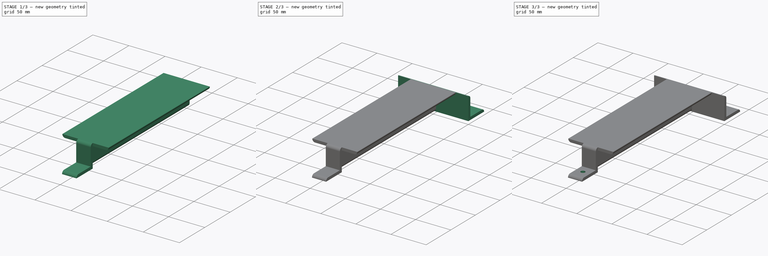
[diagram: build sequence overview — one tinted view per stage of 3, left to right]
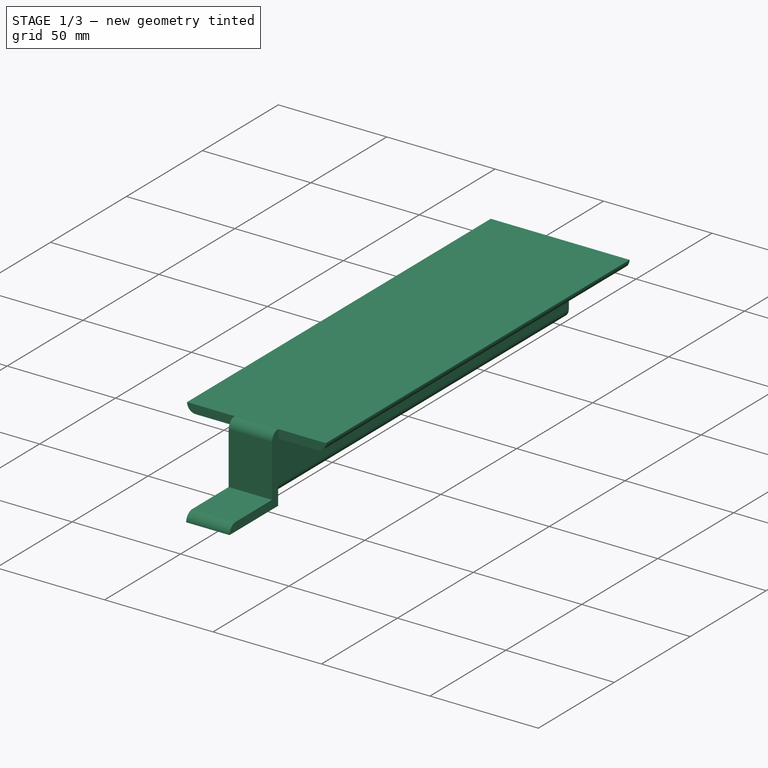
[diagram: stage 1 of 3 — iso view after this stage's code; geometry added in this stage tinted green]
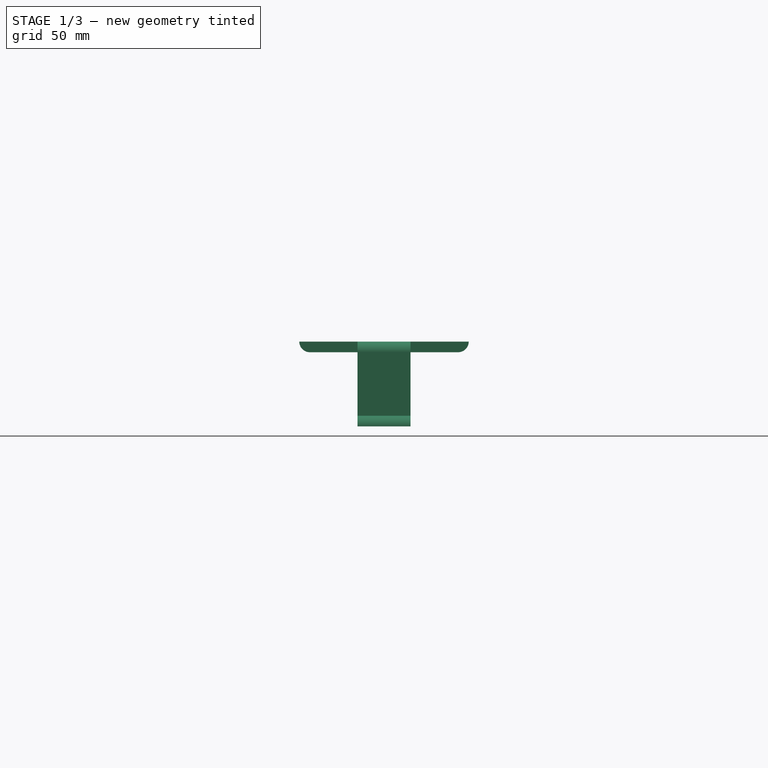
[diagram: stage 1 of 3 — front view after this stage's code; geometry added in this stage tinted green]
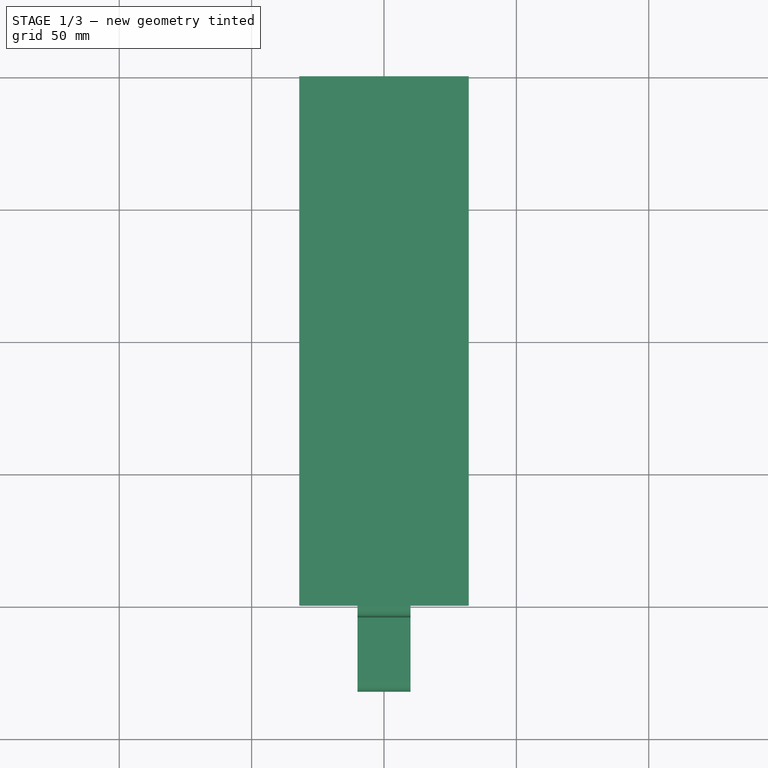
[diagram: stage 1 of 3 — top view after this stage's code; geometry added in this stage tinted green]
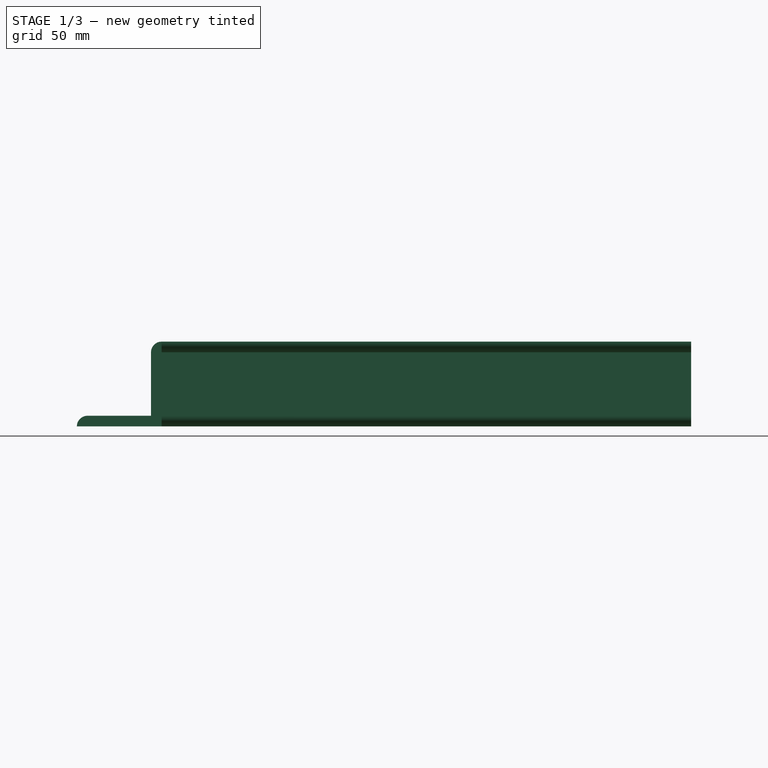
[diagram: stage 1 of 3 — right view after this stage's code; geometry added in this stage tinted green]
FCSTD DOCUMENT  (FreeCAD 0.19R)
Label: lower_support
License: All rights reserved
LicenseURL: http://en.wikipedia.org/wiki/All_rights_reserved
objects: Sketcher::SketchObject×5, PartDesign::CoordinateSystem×5, PartDesign::Pad×3, PartDesign::Point×3, PartDesign::Hole×2, PartDesign::Plane×1, PartDesign::Body×1
note: 25 computed .brp shape members not serialized (recipe doc carries the construction recipe); baked Part::Feature solids carry a one-line shape summary decoded from their .brp

FEATURE [Sketcher::SketchObject] Sketch
  FullyConstrained = true
  MapMode = 5
  Placement = pos=(0,0,0) rot=(1,0,0;1.5708rad)
  Support = -> [XZ_Plane]
  sketch-geometry (8):
    g0: LineSegment StartX=-32 StartY=32 StartZ=0 EndX=32 EndY=32 EndZ=0
    g1: LineSegment StartX=-28 StartY=28 StartZ=0 EndX=-4 EndY=28 EndZ=0
    g2: LineSegment StartX=-4 StartY=4 StartZ=0 EndX=-4 EndY=28 EndZ=0
    g3: LineSegment StartX=4 StartY=28 StartZ=0 EndX=4 EndY=4 EndZ=0
    g4: LineSegment StartX=4 StartY=28 StartZ=0 EndX=28 EndY=28 EndZ=0
    g5: ArcOfCircle CenterX=-28 CenterY=32 CenterZ=0 NormalX=0 NormalY=0 NormalZ=1 AngleXU=0 Radius=4 StartAngle=3.14159 EndAngle=4.71239
    g6: ArcOfCircle CenterX=28 CenterY=32 CenterZ=0 NormalX=0 NormalY=0 NormalZ=1 AngleXU=0 Radius=4 StartAngle=4.71239 EndAngle=6.28319
    g7: ArcOfCircle CenterX=1e-16 CenterY=4 CenterZ=0 NormalX=0 NormalY=0 NormalZ=1 AngleXU=0 Radius=4 StartAngle=3.14159 EndAngle=6.28319
  constraints (25):
    c: Horizontal(g1)
    c: Coincident(g2,g1)
    c: Vertical(g2)
    c: Vertical(g3)
    c: Coincident(g4,g3)
    c: Horizontal(g4)
    c: DistanceX(g2,g3) = 8
    c: DistanceY(g4,g0) = 4
    c: DistanceX(g0,g0) = 64
    c: Symmetric(g1,g3,g-2)
    c: DistanceY(g3,g3) = 24
    c: DistanceY(g2,g1) = 24
    c: DistanceX(g3,g4) = 24
    c: DistanceX(g1,g1) = 24
    c: DistanceY(g-1,g2) = 4
    c: Symmetric(g0,g0,g-2)
    c: Coincident(g5,g0)
    c: PointOnObject(g5,g0)
    c: Coincident(g5,g1)
    c: PointOnObject(g6,g0)
    c: Coincident(g6,g4)
    c: Coincident(g6,g0)
    c: Coincident(g7,g3)
    c: Coincident(g7,g2)
    c: PointOnObject(g-1,g7)
FEATURE [PartDesign::Pad] Pad
  Direction = (1,1,1)
  Length = 200
  Length2 = 100
  Placement = pos=(0,0,0) rot=(1,0,0;1.5708rad)
  Profile = -> Sketch
  Type = 0
FEATURE [PartDesign::CoordinateSystem] LCS_1
  AttacherType = Attacher::AttachEngine3D
  MapMode = 45
  Placement = pos=(0,-200,32) rot=(0.57735,0.57735,0.57735;2.0944rad)
  Support = -> [Pad]
FEATURE [PartDesign::CoordinateSystem] LCS_2
  AttacherType = Attacher::AttachEngine3D
  MapMode = 45
  Placement = pos=(0,0,32) rot=(0.57735,0.57735,0.57735;2.0944rad)
  Support = -> [Pad]
FEATURE [PartDesign::Plane] DatumPlane
  AttachmentOffset = pos=(0,0,0) rot=(0,1,0;1.5708rad)
  Length = 288.534
  MapMode = 5
  Placement = pos=(0,0,0) rot=(-0.57735,0.57735,-0.57735;2.0944rad)
  ResizeMode = 0
  Support = -> [Pad]
  Width = 81.5341
FEATURE [Sketcher::SketchObject] Sketch001
  ExternalGeometry = -> [Pad]
  FullyConstrained = true
  MapMode = 5
  Placement = pos=(0,0,0) rot=(0.57735,-0.57735,0.57735;4.18879rad)
  Support = -> [DatumPlane]
  sketch-geometry (6):
    g0: LineSegment StartX=200 StartY=0 StartZ=0 EndX=232 EndY=-1e-15 EndZ=0
    g1: LineSegment StartX=200 StartY=0 StartZ=0 EndX=200 EndY=-32 EndZ=0
    g2: LineSegment StartX=228 StartY=-4 StartZ=0 EndX=204 EndY=-4 EndZ=0
    g3: LineSegment StartX=204 StartY=-4 StartZ=0 EndX=204 EndY=-28 EndZ=0
    g4: ArcOfCircle CenterX=228 CenterY=0 CenterZ=0 NormalX=0 NormalY=0 NormalZ=1 AngleXU=0 Radius=4 StartAngle=4.71239 EndAngle=6.28319
    g5: ArcOfCircle CenterX=200 CenterY=-28 CenterZ=0 NormalX=0 NormalY=0 NormalZ=1 AngleXU=0 Radius=4 StartAngle=4.71239 EndAngle=6.28319
  constraints (19):
    c: Coincident(g0,g-3)
    c: PointOnObject(g0,g-1)
    c: Coincident(g1,g0)
    c: Vertical(g1)
    c: Horizontal(g2)
    c: Coincident(g3,g2)
    c: Vertical(g3)
    c: DistanceX(g1,g3) = 4
    c: DistanceY(g2,g0) = 4
    c: DistanceX(g0,g0) = 32
    c: DistanceX(g2,g2) = 24
    c: DistanceY(g1,g0) = 32
    c: DistanceY(g3,g2) = 24
    c: PointOnObject(g4,g0)
    c: Coincident(g4,g2)
    c: Coincident(g4,g0)
    c: PointOnObject(g5,g1)
    c: Coincident(g5,g1)
    c: Coincident(g5,g3)
FEATURE [PartDesign::Pad] Pad001
  BaseFeature = -> Pad
  Direction = (1,1,1)
  Length = 20
  Length2 = 100
  Midplane = true
  Placement = pos=(0,0,0) rot=(1,0,0;1.5708rad)
  Profile = -> Sketch001
  Type = 0
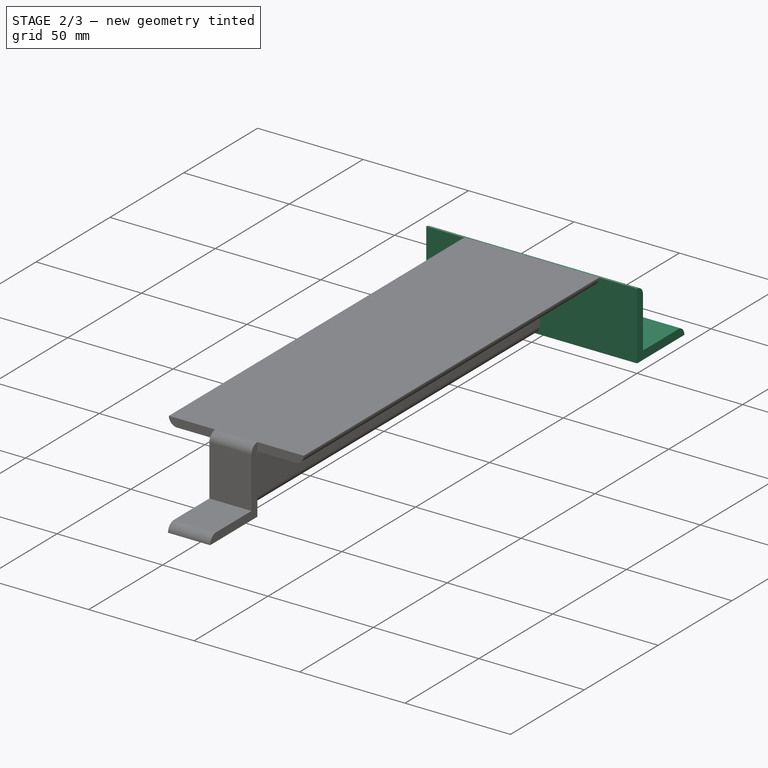
[diagram: stage 2 of 3 — iso view after this stage's code; geometry added in this stage tinted green]
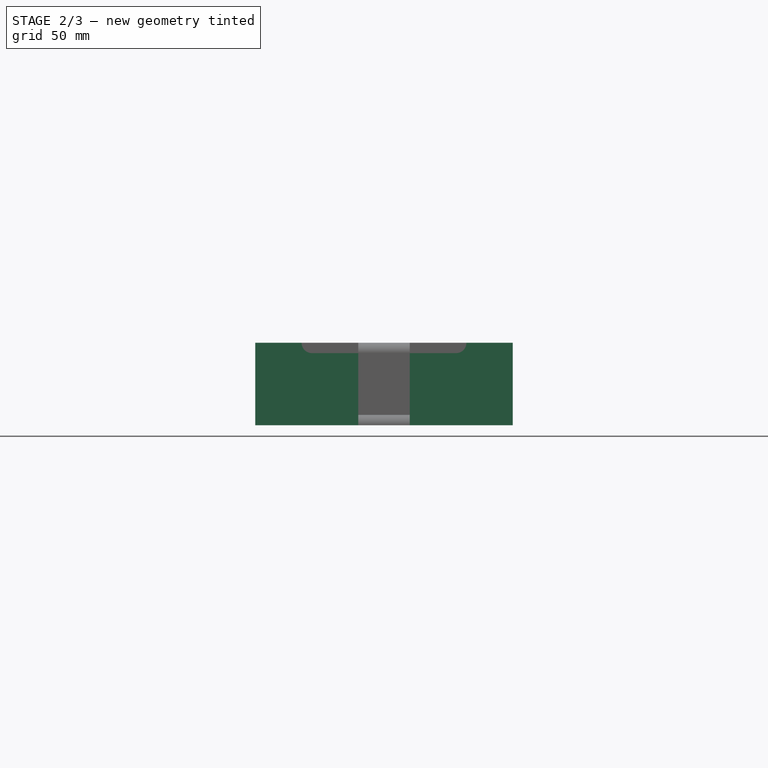
[diagram: stage 2 of 3 — front view after this stage's code; geometry added in this stage tinted green]
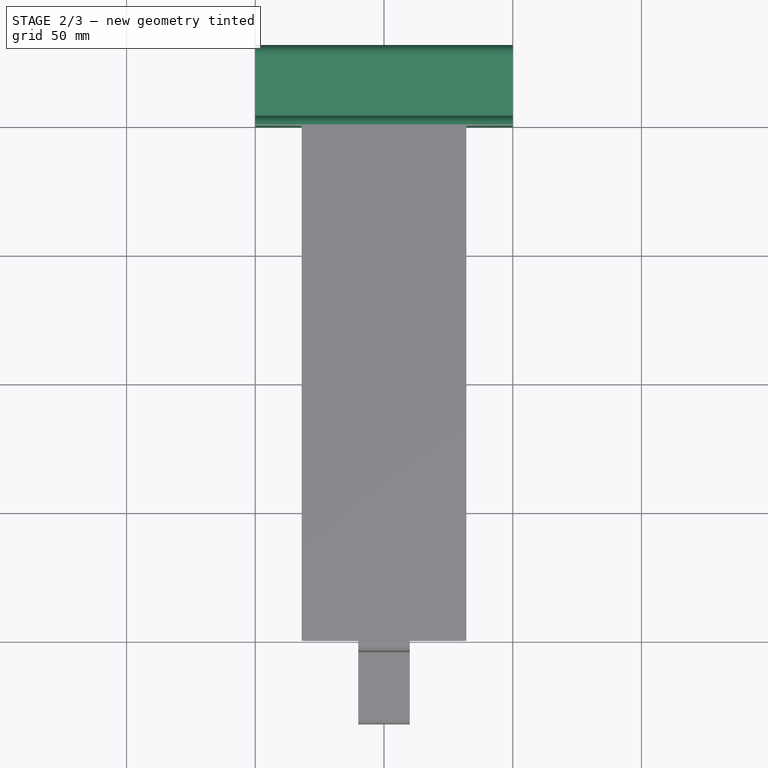
[diagram: stage 2 of 3 — top view after this stage's code; geometry added in this stage tinted green]
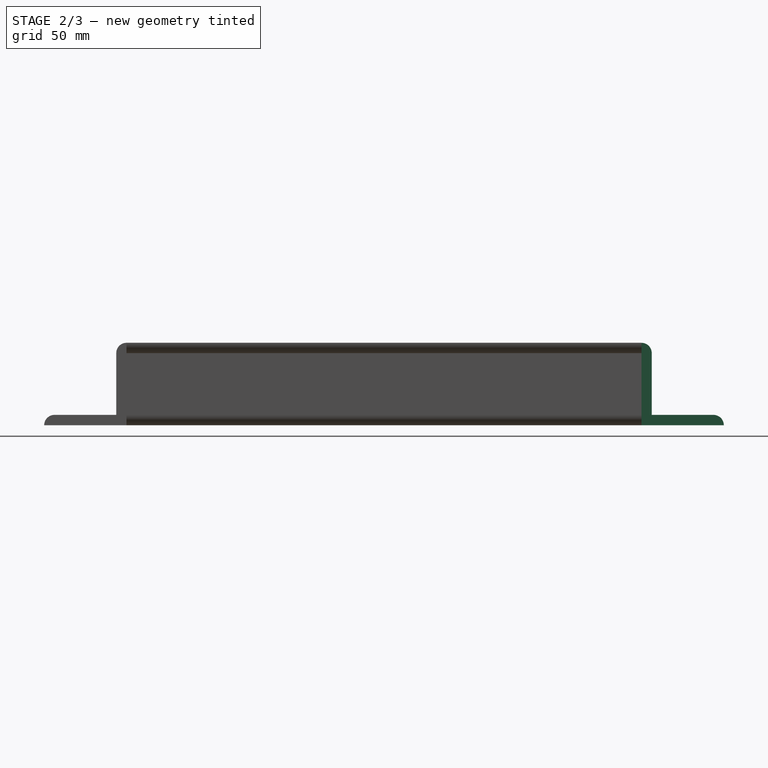
[diagram: stage 2 of 3 — right view after this stage's code; geometry added in this stage tinted green]
FEATURE [Sketcher::SketchObject] Sketch002
  ExternalGeometry = -> [Pad001]
  FullyConstrained = true
  MapMode = 5
  Placement = pos=(0,0,0) rot=(0.57735,-0.57735,0.57735;4.18879rad)
  Support = -> [DatumPlane]
  expr: Constraints[9] = 32
  sketch-geometry (6):
    g0: LineSegment StartX=0 StartY=0 StartZ=0 EndX=-32 EndY=5e-16 EndZ=0
    g1: LineSegment StartX=0 StartY=0 StartZ=0 EndX=0 EndY=-32 EndZ=0
    g2: LineSegment StartX=-28 StartY=-4 StartZ=0 EndX=-4 EndY=-4 EndZ=0
    g3: LineSegment StartX=-4 StartY=-4 StartZ=0 EndX=-4 EndY=-28 EndZ=0
    g4: ArcOfCircle CenterX=-28 CenterY=0 CenterZ=0 NormalX=0 NormalY=0 NormalZ=1 AngleXU=0 Radius=4 StartAngle=3.14159 EndAngle=4.71239
    g5: ArcOfCircle CenterX=0 CenterY=-28 CenterZ=0 NormalX=0 NormalY=0 NormalZ=1 AngleXU=0 Radius=4 StartAngle=3.14159 EndAngle=4.71239
  constraints (19):
    c: Coincident(g0,g-1)
    c: PointOnObject(g0,g-1)
    c: Coincident(g1,g0)
    c: PointOnObject(g1,g-2)
    c: Horizontal(g2)
    c: Coincident(g3,g2)
    c: Vertical(g3)
    c: DistanceY(g3,g2) = 24
    c: DistanceX(g2,g2) = 24
    c: DistanceY(g1,g0) = 32
    c: DistanceX(g0,g0) = 32
    c: DistanceX(g3,g1) = 4
    c: DistanceY(g2,g0) = 4
    c: PointOnObject(g4,g0)
    c: Coincident(g4,g2)
    c: Coincident(g4,g0)
    c: PointOnObject(g5,g1)
    c: Coincident(g5,g1)
    c: Coincident(g5,g3)
FEATURE [PartDesign::Pad] Pad002
  BaseFeature = -> Pad001
  Direction = (1,1,1)
  Length = 100
  Length2 = 100
  Midplane = true
  Placement = pos=(0,0,0) rot=(1,0,0;1.5708rad)
  Profile = -> Sketch002
  Type = 0
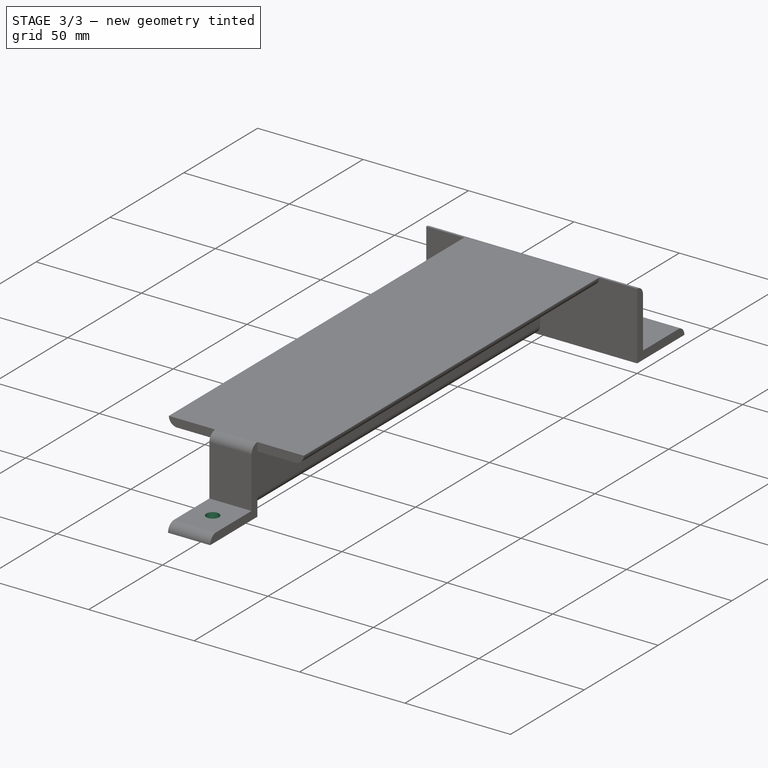
[diagram: stage 3 of 3 — iso view after this stage's code; geometry added in this stage tinted green]
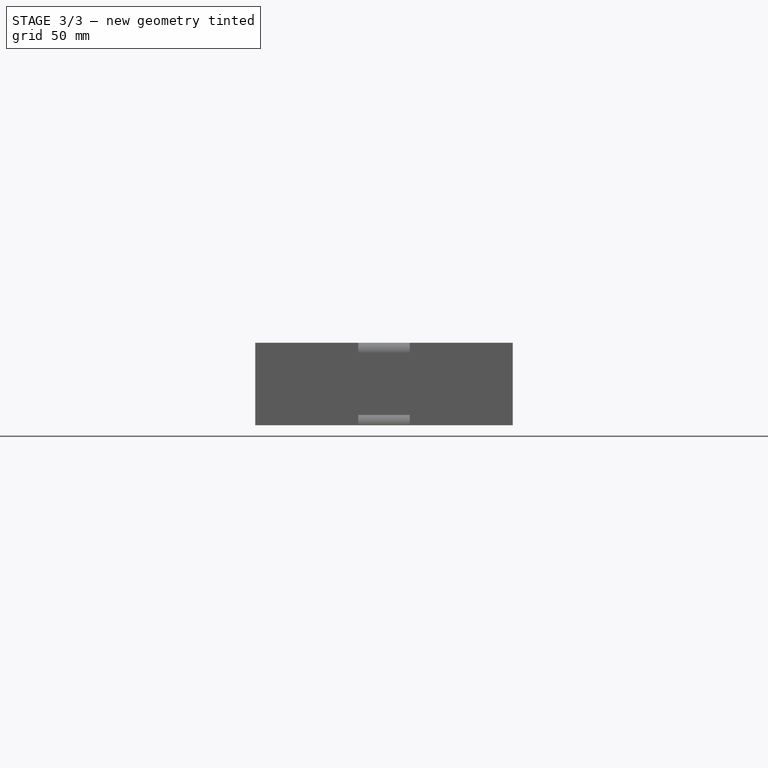
[diagram: stage 3 of 3 — front view after this stage's code; geometry added in this stage tinted green]
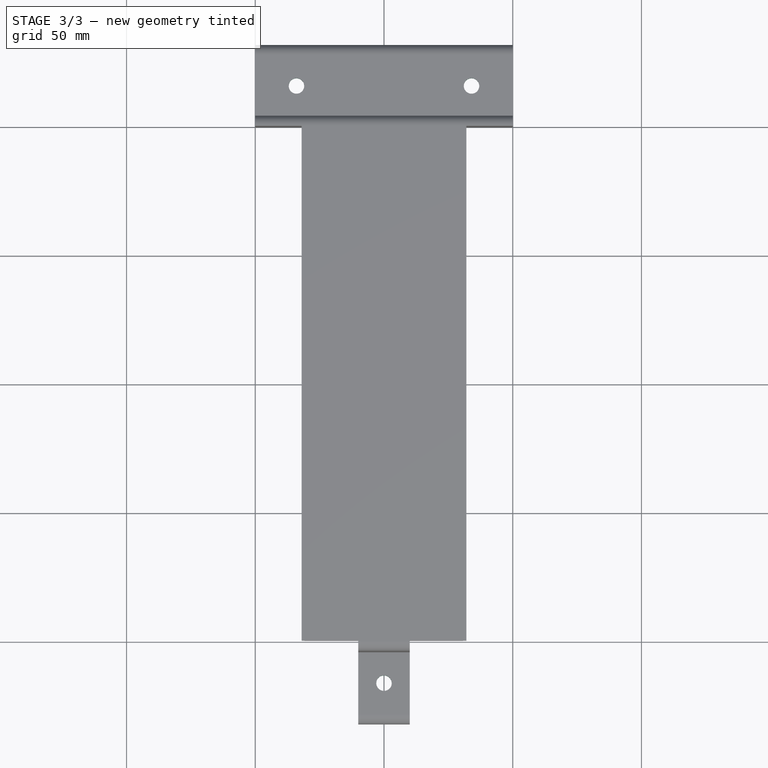
[diagram: stage 3 of 3 — top view after this stage's code; geometry added in this stage tinted green]
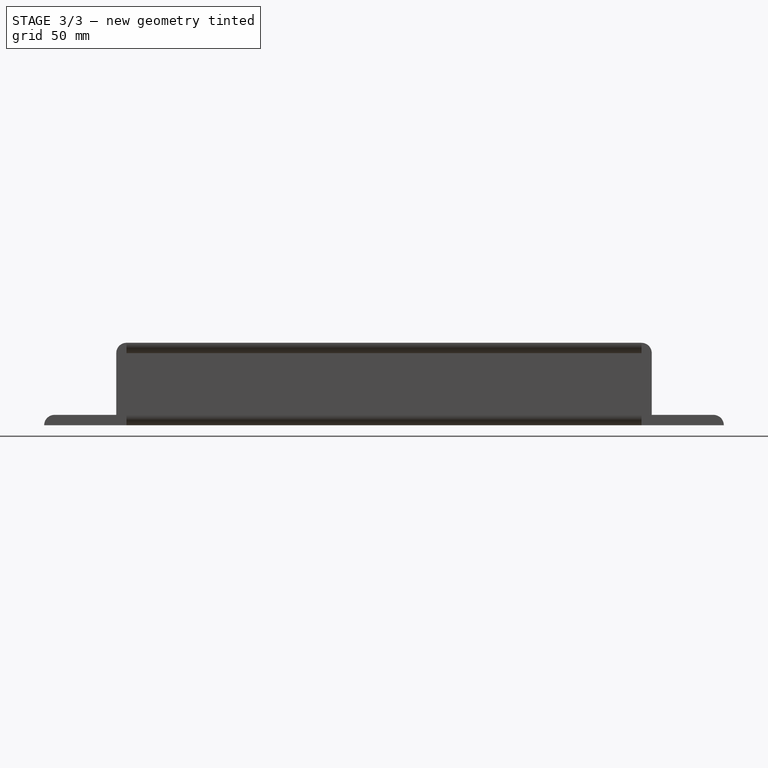
[diagram: stage 3 of 3 — right view after this stage's code; geometry added in this stage tinted green]
FEATURE [Sketcher::SketchObject] Sketch003
  ExternalGeometry = -> [Pad002]
  FullyConstrained = true
  MapMode = 5
  Placement = pos=(0,0,-6.4e-15) rot=(1,0,0;3.14159rad)
  Support = -> [Pad002]
  sketch-geometry (1):
    g0: Circle CenterX=0 CenterY=216 CenterZ=0 NormalX=0 NormalY=0 NormalZ=1 AngleXU=0 Radius=3.25
  constraints (3):
    c: DistanceY(g0,g-3) = 16
    c: PointOnObject(g0,g-2)
    c: Diameter(g0) = 6.5
FEATURE [PartDesign::Hole] Hole
  BaseFeature = -> Pad002
  Depth = 25
  DepthType = 0
  Diameter = 6
  DrillForDepth = false
  DrillPoint = 1
  DrillPointAngle = 118
  HoleCutCountersinkAngle = 90
  HoleCutCustomValues = false
  HoleCutDepth = 0
  HoleCutDiameter = 6.1
  HoleCutType = 0
  ModelActualThread = false
  Placement = pos=(0,0,0) rot=(1,0,0;1.5708rad)
  Profile = -> Sketch003
  Tapered = false
  TaperedAngle = 90
  ThreadAngle = 0
  ThreadClass = 0
  ThreadCutOffInner = 0
  ThreadCutOffOuter = 0
  ThreadDirection = 0
  ThreadFit = 0
  ThreadPitch = 0
  ThreadSize = 0
  ThreadType = 0
  Threaded = false
FEATURE [Sketcher::SketchObject] Sketch004
  ExternalGeometry = -> [Hole]
  FullyConstrained = true
  MapMode = 5
  Placement = pos=(0,0,0) rot=(1,0,0;3.14159rad)
  Support = -> [Hole]
  sketch-geometry (2):
    g0: Circle CenterX=34 CenterY=-16 CenterZ=0 NormalX=0 NormalY=0 NormalZ=1 AngleXU=0 Radius=3.25
    g1: Circle CenterX=-34 CenterY=-16 CenterZ=0 NormalX=0 NormalY=0 NormalZ=1 AngleXU=0 Radius=3.25
  constraints (5):
    c: Equal(g0,g1)
    c: Diameter(g1) = 6.5
    c: Symmetric(g1,g0,g-2)
    c: DistanceX(g-4,g1) = 16
    c: DistanceY(g-4,g1) = 16
FEATURE [PartDesign::Hole] Hole001
  BaseFeature = -> Hole
  Depth = 25
  DepthType = 0
  Diameter = 6
  DrillForDepth = false
  DrillPoint = 1
  DrillPointAngle = 118
  HoleCutCountersinkAngle = 90
  HoleCutCustomValues = false
  HoleCutDepth = 0
  HoleCutDiameter = 6.1
  HoleCutType = 0
  ModelActualThread = false
  Placement = pos=(0,0,0) rot=(1,0,0;1.5708rad)
  Profile = -> Sketch004
  Tapered = false
  TaperedAngle = 90
  ThreadAngle = 0
  ThreadClass = 0
  ThreadCutOffInner = 0
  ThreadCutOffOuter = 0
  ThreadDirection = 0
  ThreadFit = 0
  ThreadPitch = 0
  ThreadSize = 0
  ThreadType = 0
  Threaded = false
FEATURE [PartDesign::CoordinateSystem] LCS_hole2
  AttacherType = Attacher::AttachEngine3D
  MapMode = 11
  Placement = pos=(34,16,-2.9e-14) rot=(0.707107,0.707107,0;3.14159rad)
  Support = -> [Hole001]
FEATURE [PartDesign::CoordinateSystem] LCS_hole3
  AttacherType = Attacher::AttachEngine3D
  MapMode = 11
  Placement = pos=(-34,16,-2.9e-14) rot=(0.707107,0.707107,0;3.14159rad)
  Support = -> [Hole001]
FEATURE [PartDesign::CoordinateSystem] LCS_hole1
  AttacherType = Attacher::AttachEngine3D
  MapMode = 11
  Placement = pos=(0,-216,3.84e-13) rot=(0.707107,0.707107,0;3.14159rad)
  Support = -> [Hole001]
FEATURE [PartDesign::Point] DatumPoint
  AttacherType = Attacher::AttachEnginePoint
  MapMode = 36
  Placement = pos=(34,16,-2.9e-14) rot=(0,-0.707107,0.707107;3.14159rad)
  Support = -> [Hole001]
FEATURE [PartDesign::Point] DatumPoint001
  AttacherType = Attacher::AttachEnginePoint
  MapMode = 36
  Placement = pos=(-34,16,-2.9e-14) rot=(0,-0.707107,0.707107;3.14159rad)
  Support = -> [Hole001]
FEATURE [PartDesign::Point] DatumPoint002
  AttacherType = Attacher::AttachEnginePoint
  MapMode = 36
  Placement = pos=(0,-216,3.84e-13) rot=(0,-0.707107,0.707107;3.14159rad)
  Support = -> [Hole001]
FEATURE [PartDesign::Body] Body
  Group = -> [Sketch,Pad,LCS_1,LCS_2,DatumPlane,Sketch001,Pad001,Sketch002,Pad002,Sketch003,Hole,Sketch004,Hole001,LCS_hole2,LCS_hole3,LCS_hole1,DatumPoint,DatumPoint001,DatumPoint002]
  Origin = -> Origin
  Tip = -> Hole001
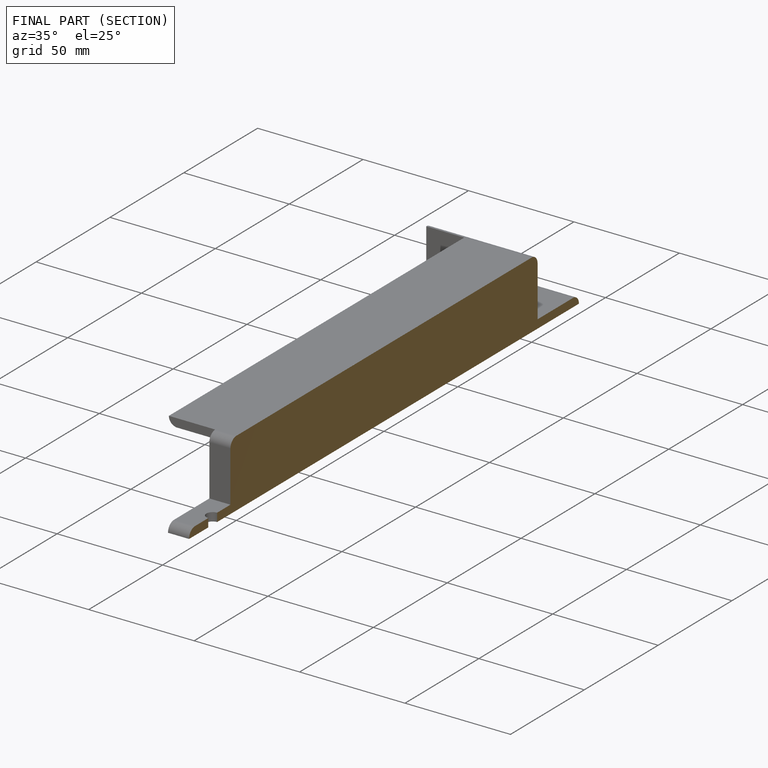
[diagram: finished part — half-section view (interior)]
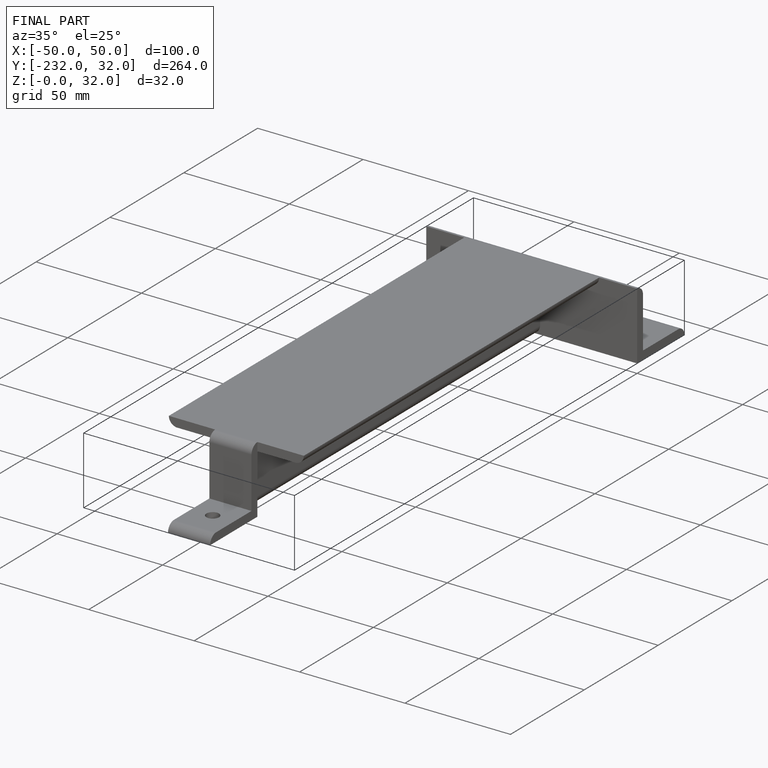
[diagram: finished part — iso view with bounding-box wireframe]
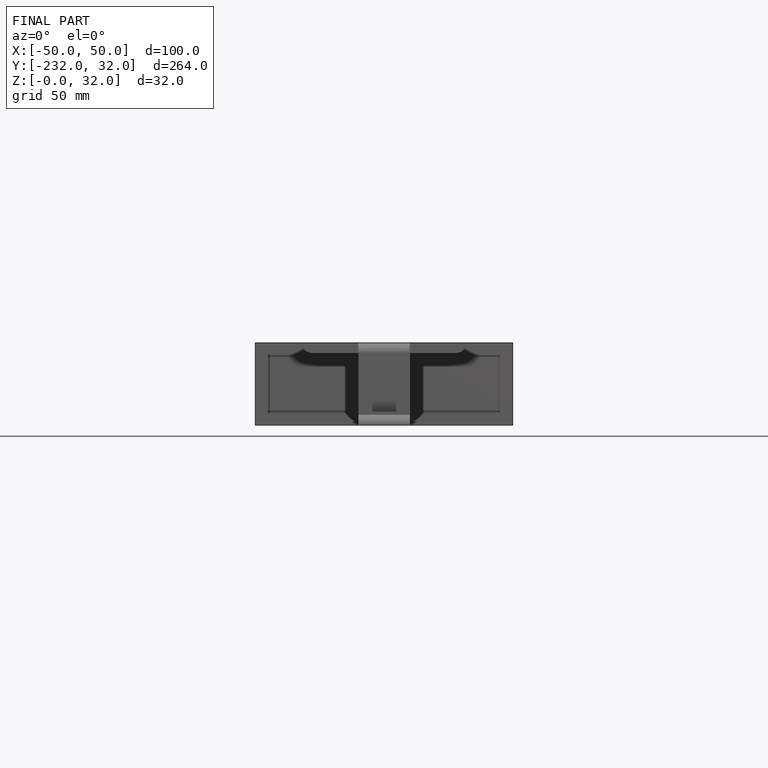
[diagram: finished part — front view with bounding-box wireframe]
